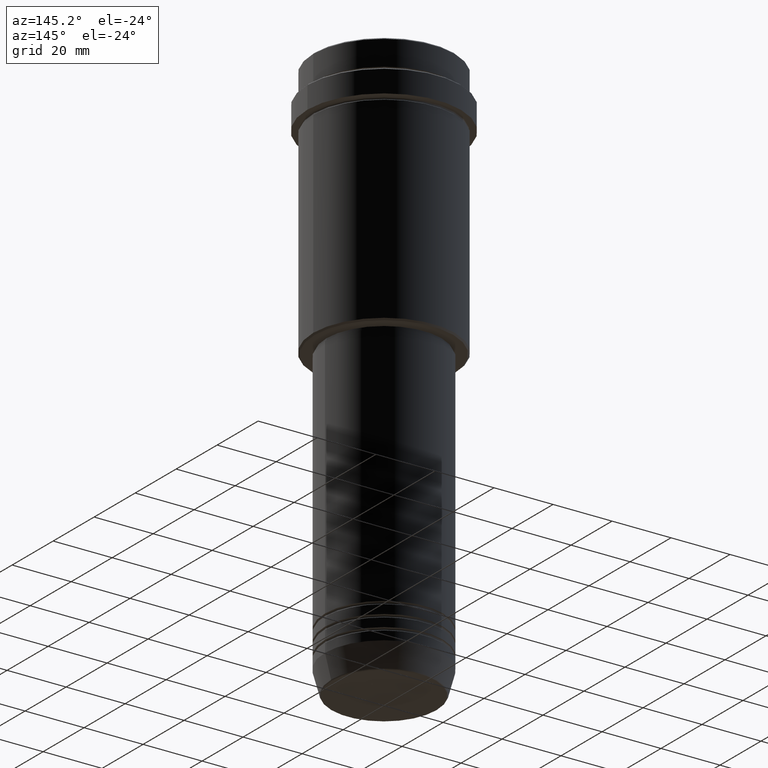
[diagram: clean part render]
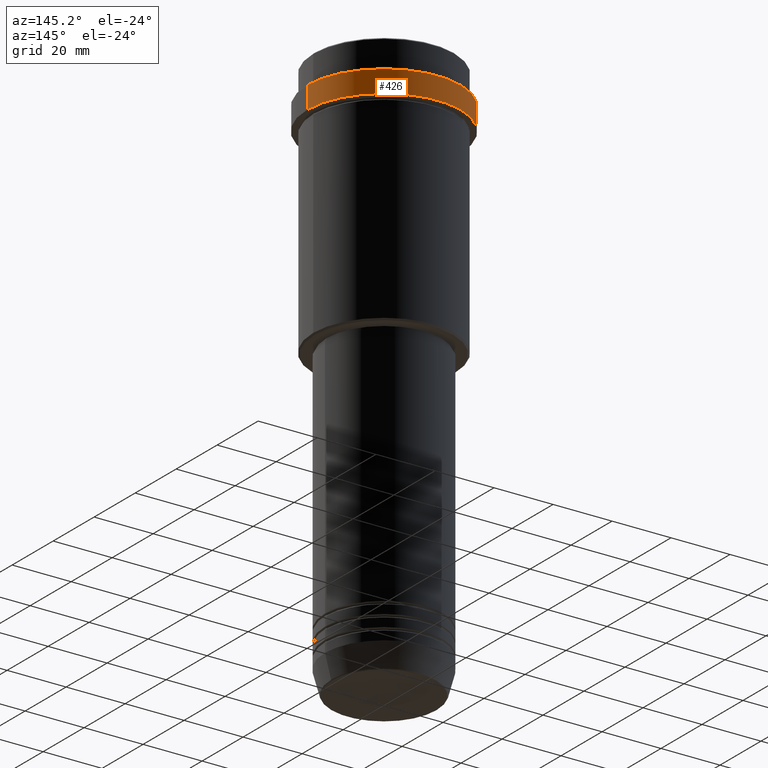
[diagram: same view with one face highlighted and labeled with its STEP entity id]
A machine part, auxiliary view. The second image highlights one B-rep face of the part: STEP entity #426.
In plain terms, the highlighted cylindrical surface (partial cylindrical patch) has radius 26 mm, axis along (-0, -0, 1).
Its self-contained STEP definition (entity closure, byte-faithful):
#4 = EDGE_CURVE ( 'NONE', #618, #354, #1044, .T. ) ;
#39 = AXIS2_PLACEMENT_3D ( 'NONE', #110, #446, #876 ) ;
#64 = AXIS2_PLACEMENT_3D ( 'NONE', #257, #696, #1017 ) ;
#77 = CARTESIAN_POINT ( 'NONE',  ( 25.99999999999997868, 0.000000000000000000, -10.49999999999999822 ) ) ;
#99 = ORIENTED_EDGE ( 'NONE', *, *, #4, .T. ) ;
#110 = CARTESIAN_POINT ( 'NONE',  ( 0.000000000000000000, 0.000000000000000000, -18.00000000000000355 ) ) ;
#116 = VECTOR ( 'NONE', #493, 1000.000000000000000 ) ;
#238 = EDGE_CURVE ( 'NONE', #490, #618, #1111, .T. ) ;
#257 = CARTESIAN_POINT ( 'NONE',  ( 0.000000000000000000, 0.000000000000000000, 0.000000000000000000 ) ) ;
#346 = CARTESIAN_POINT ( 'NONE',  ( 25.99999999999997868, 0.000000000000000000, 0.000000000000000000 ) ) ;
#354 = VERTEX_POINT ( 'NONE', #77 ) ;
#361 = CYLINDRICAL_SURFACE ( 'NONE', #64, 25.99999999999997868 ) ;
#383 = CARTESIAN_POINT ( 'NONE',  ( -25.99999999999997868, 3.184081677783115430E-15, -18.00000000000000355 ) ) ;
#408 = CARTESIAN_POINT ( 'NONE',  ( 0.000000000000000000, 0.000000000000000000, -10.49999999999999822 ) ) ;
#426 = ADVANCED_FACE ( 'NONE', ( #1107 ), #361, .T. ) ;
#436 = AXIS2_PLACEMENT_3D ( 'NONE', #408, #845, #630 ) ;
#446 = DIRECTION ( 'NONE',  ( -0.000000000000000000, -0.000000000000000000, 1.000000000000000000 ) ) ;
#490 = VERTEX_POINT ( 'NONE', #383 ) ;
#493 = DIRECTION ( 'NONE',  ( -0.000000000000000000, -0.000000000000000000, 1.000000000000000000 ) ) ;
#556 = ORIENTED_EDGE ( 'NONE', *, *, #238, .T. ) ;
#607 = EDGE_LOOP ( 'NONE', ( #1327, #556, #99, #685 ) ) ;
#618 = VERTEX_POINT ( 'NONE', #666 ) ;
#630 = DIRECTION ( 'NONE',  ( 1.000000000000000000, 0.000000000000000000, 0.000000000000000000 ) ) ;
#635 = EDGE_CURVE ( 'NONE', #1259, #490, #1299, .T. ) ;
#666 = CARTESIAN_POINT ( 'NONE',  ( -25.99999999999997868, 3.184081677783115430E-15, -10.49999999999999822 ) ) ;
#675 = DIRECTION ( 'NONE',  ( -0.000000000000000000, -0.000000000000000000, 1.000000000000000000 ) ) ;
#685 = ORIENTED_EDGE ( 'NONE', *, *, #1051, .F. ) ;
#696 = DIRECTION ( 'NONE',  ( -0.000000000000000000, -0.000000000000000000, 1.000000000000000000 ) ) ;
#733 = CARTESIAN_POINT ( 'NONE',  ( 25.99999999999997868, 0.000000000000000000, -18.00000000000000355 ) ) ;
#845 = DIRECTION ( 'NONE',  ( 0.000000000000000000, 0.000000000000000000, -1.000000000000000000 ) ) ;
#876 = DIRECTION ( 'NONE',  ( 1.000000000000000000, 0.000000000000000000, 0.000000000000000000 ) ) ;
#1017 = DIRECTION ( 'NONE',  ( 1.000000000000000000, 0.000000000000000000, 0.000000000000000000 ) ) ;
#1044 = CIRCLE ( 'NONE', #436, 25.99999999999997868 ) ;
#1051 = EDGE_CURVE ( 'NONE', #1259, #354, #1256, .T. ) ;
#1107 = FACE_OUTER_BOUND ( 'NONE', #607, .T. ) ;
#1111 = LINE ( 'NONE', #1342, #1160 ) ;
#1160 = VECTOR ( 'NONE', #675, 1000.000000000000000 ) ;
#1256 = LINE ( 'NONE', #346, #116 ) ;
#1259 = VERTEX_POINT ( 'NONE', #733 ) ;
#1299 = CIRCLE ( 'NONE', #39, 25.99999999999997868 ) ;
#1327 = ORIENTED_EDGE ( 'NONE', *, *, #635, .T. ) ;
#1342 = CARTESIAN_POINT ( 'NONE',  ( -25.99999999999997868, 3.184081677783115430E-15, 0.000000000000000000 ) ) ;